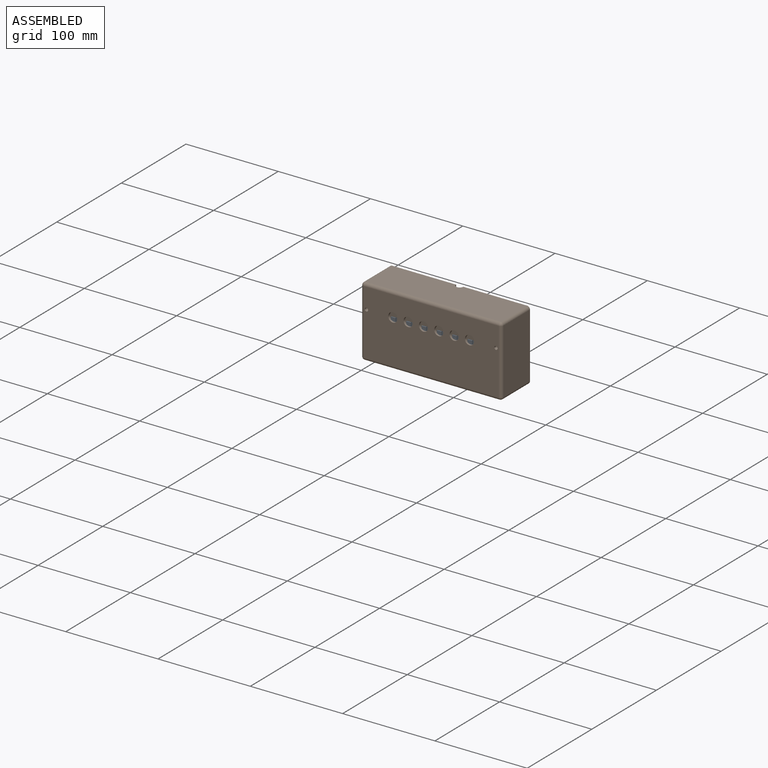
[diagram: assembled view]
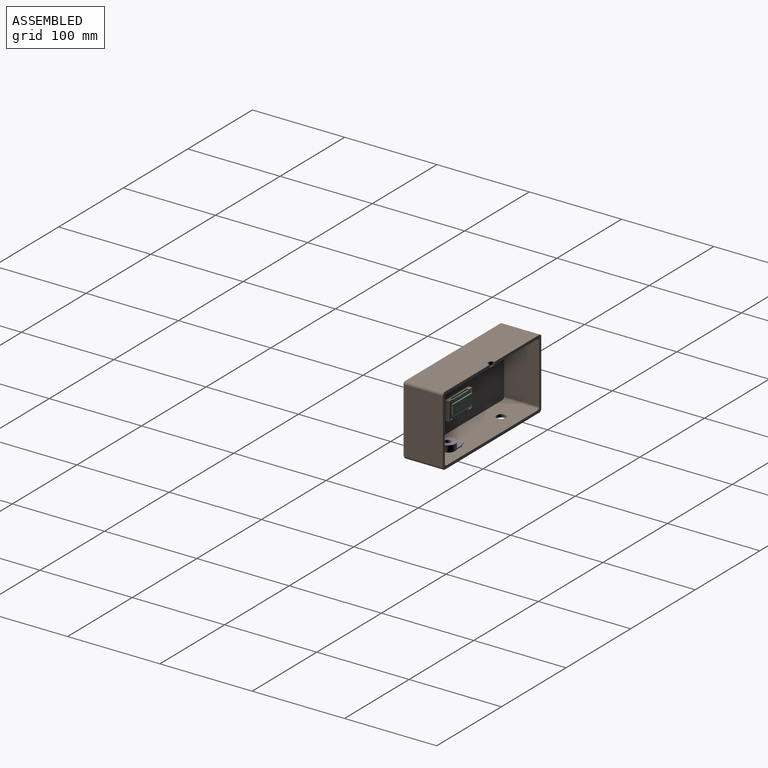
[diagram: assembled view, second angle]
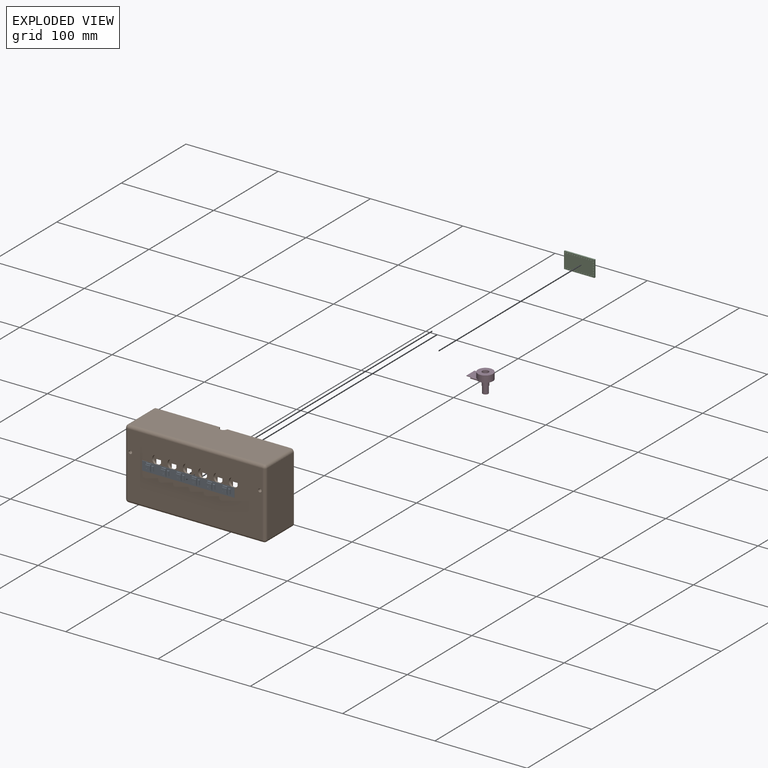
[diagram: exploded view]
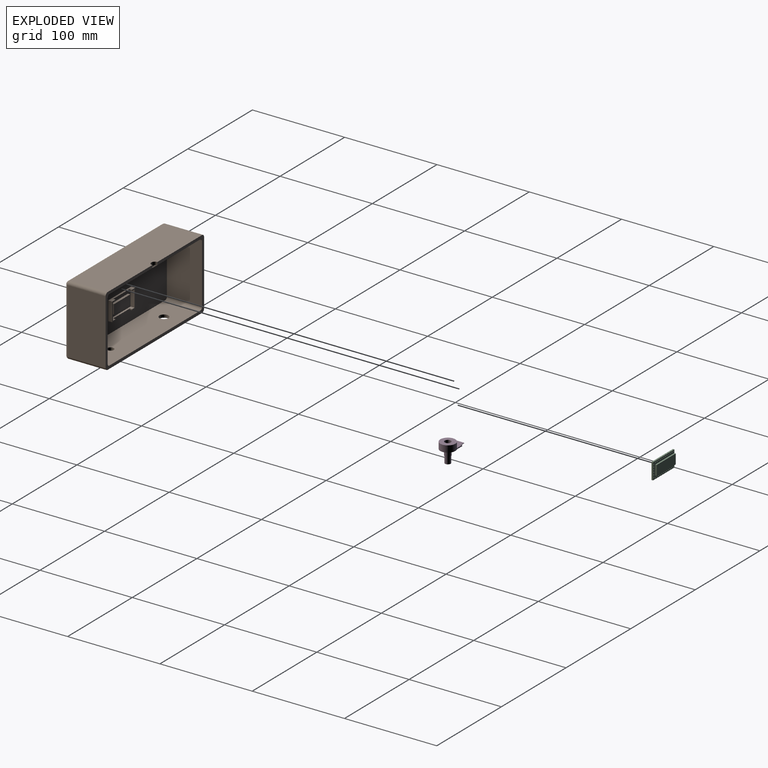
[diagram: exploded view, second angle]
ASSEMBLY  parts=4 mates=4
PART A: 132 faces, bbox 100x1.8x10 mm
  f0: plane 7.91x1.6mm, normal (1,0,0), area 10.9mm2, adj f1,f4,f5,f66,f67,f68,f69,f126
  f1: plane 5x0.6mm, normal (0,0,1), area 3mm2, adj f0,f2,f5,f67
  f2: plane 7.91x1.6mm, normal (-1,0,0), area 10.9mm2, adj f1,f4,f5,f66,f67,f68,f69,f126
  f3: cylinder r=1.88mm len=3.75mm, axis (0,1,0), area 1.2mm2, adj f5,f11
  f4: plane 5x0.6mm, normal (0,0,-1), area 3mm2, adj f0,f2,f5,f66
  f5: plane 5x5mm, normal (0,-1,0), area 14mm2, adj f0,f1,f2,f3,f4
  f6: plane 2.5x0.5mm, normal (0,-1,0), area 1.3mm2, adj f7,f8,f9,f10
  f7: plane 2.5x0.1mm, normal (0,0,-1), area 0.3mm2, adj f6,f8,f10,f11
  f8: plane 0.5x0.1mm, normal (1,0,0), area 0.1mm2, adj f6,f7,f9,f11
  f9: plane 2.5x0.1mm, normal (0,0,1), area 0.3mm2, adj f6,f8,f10,f11
  f10: plane 0.5x0.1mm, normal (-1,0,0), area 0.1mm2, adj f6,f7,f9,f11
  f11: plane 3.75x3.75mm, normal (0,-1,0), area 9.8mm2, adj f3,f7,f8,f9,f10
  f12: plane 7.91x1.6mm, normal (1,0,0), area 10.9mm2, adj f13,f16,f17,f52,f53,f54,f55,f126
  f13: plane 5x0.6mm, normal (0,0,1), area 3mm2, adj f12,f14,f17,f52
  f14: plane 7.91x1.6mm, normal (-1,0,0), area 10.9mm2, adj f13,f16,f17,f52,f53,f54,f55,f126
  f15: cylinder r=1.88mm len=3.75mm, axis (0,1,0), area 1.2mm2, adj f17,f23
  f16: plane 5x0.6mm, normal (0,0,-1), area 3mm2, adj f12,f14,f17,f53
  f17: plane 5x5mm, normal (0,-1,0), area 14mm2, adj f12,f13,f14,f15,f16
  f18: plane 2.5x0.5mm, normal (0,-1,0), area 1.3mm2, adj f19,f20,f21,f22
  f19: plane 0.5x0.1mm, normal (-1,0,0), area 0.1mm2, adj f18,f20,f22,f23
  f20: plane 2.5x0.1mm, normal (0,0,-1), area 0.3mm2, adj f18,f19,f21,f23
  f21: plane 0.5x0.1mm, normal (1,0,0), area 0.1mm2, adj f18,f20,f22,f23
  f22: plane 2.5x0.1mm, normal (0,0,1), area 0.3mm2, adj f18,f19,f21,f23
  f23: plane 3.75x3.75mm, normal (0,-1,0), area 9.8mm2, adj f15,f19,f20,f21,f22
  f24: plane 7.91x1.6mm, normal (1,0,0), area 10.9mm2, adj f25,f28,f29,f70,f71,f72,f73,f126
  f25: plane 5x0.6mm, normal (0,0,1), area 3mm2, adj f24,f26,f29,f71
  f26: plane 7.91x1.6mm, normal (-1,0,0), area 10.9mm2, adj f25,f28,f29,f70,f71,f72,f73,f126
  f27: cylinder r=1.88mm len=3.75mm, axis (0,1,0), area 1.2mm2, adj f29,f35
  f28: plane 5x0.6mm, normal (0,0,-1), area 3mm2, adj f24,f26,f29,f73
  f29: plane 5x5mm, normal (0,-1,0), area 14mm2, adj f24,f25,f26,f27,f28
  f30: plane 2.5x0.5mm, normal (0,-1,0), area 1.2mm2, adj f31,f32,f33,f34
  f31: plane 2.5x0.1mm, normal (0,0,-1), area 0.3mm2, adj f30,f32,f34,f35
  f32: plane 0.5x0.1mm, normal (1,0,0), area 0.1mm2, adj f30,f31,f33,f35
  f33: plane 2.5x0.1mm, normal (0,0,1), area 0.3mm2, adj f30,f32,f34,f35
  f34: plane 0.5x0.1mm, normal (-1,0,0), area 0.1mm2, adj f30,f31,f33,f35
  f35: plane 3.75x3.75mm, normal (0,-1,0), area 9.8mm2, adj f27,f31,f32,f33,f34
  f36: plane 7.91x1.6mm, normal (1,0,0), area 10.9mm2, adj f37,f40,f41,f74,f75,f76,f77,f126
  f37: plane 5x0.6mm, normal (0,0,1), area 3mm2, adj f36,f38,f41,f75
  f38: plane 7.91x1.6mm, normal (-1,0,0), area 10.9mm2, adj f37,f40,f41,f74,f75,f76,f77,f126
  f39: cylinder r=1.88mm len=3.75mm, axis (0,1,0), area 1.2mm2, adj f41,f47
  f40: plane 5x0.6mm, normal (0,0,-1), area 3mm2, adj f36,f38,f41,f77
  f41: plane 5x5mm, normal (0,-1,0), area 14mm2, adj f36,f37,f38,f39,f40
  f42: plane 2.5x0.5mm, normal (0,-1,0), area 1.2mm2, adj f43,f44,f45,f46
  f43: plane 2.5x0.1mm, normal (0,0,-1), area 0.3mm2, adj f42,f44,f46,f47
  f44: plane 0.5x0.1mm, normal (1,0,0), area 0.1mm2, adj f42,f43,f45,f47
  f45: plane 2.5x0.1mm, normal (0,0,1), area 0.3mm2, adj f42,f44,f46,f47
  f46: plane 0.5x0.1mm, normal (-1,0,0), area 0.1mm2, adj f42,f43,f45,f47
  f47: plane 3.75x3.75mm, normal (0,-1,0), area 9.8mm2, adj f39,f43,f44,f45,f46
  f48: plane 10x0.2mm, normal (1,0,0), area 2mm2, adj f49,f51,f125,f126
  f49: plane 100x0.2mm, normal (0,0,1), area 20mm2, adj f48,f50,f125,f126
  f50: plane 10x0.2mm, normal (-1,0,0), area 2mm2, adj f49,f51,f125,f126
  f51: plane 100x0.2mm, normal (0,0,-1), area 20mm2, adj f48,f50,f125,f126
  f52: plane 5x1.46mm, normal (0,-1,0), area 7.3mm2, adj f12,f13,f14,f54
  f53: plane 5x1.46mm, normal (0,-1,0), area 7.3mm2, adj f12,f14,f16,f55
  f54: plane 5x1mm, normal (0,0,1), area 5mm2, adj f12,f14,f52,f126
  f55: plane 5x1mm, normal (0,0,-1), area 5mm2, adj f12,f14,f53,f126
  f56: plane 5x2mm, normal (0,-1,0), area 10mm2, adj f57,f58,f59,f60
  f57: plane 2x1mm, normal (0,0,-1), area 2mm2, adj f56,f58,f60,f126
  f58: plane 5x1mm, normal (-1,0,0), area 5mm2, adj f56,f57,f59,f126
  f59: plane 2x1mm, normal (0,0,1), area 2mm2, adj f56,f58,f60,f126
  f60: plane 5x1mm, normal (1,0,0), area 5mm2, adj f56,f57,f59,f126
  f61: plane 5x2mm, normal (0,-1,0), area 10mm2, adj f62,f63,f64,f65
  f62: plane 2x1mm, normal (0,0,-1), area 2mm2, adj f61,f63,f65,f126
  f63: plane 5x1mm, normal (-1,0,0), area 5mm2, adj f61,f62,f64,f126
  f64: plane 2x1mm, normal (0,0,1), area 2mm2, adj f61,f63,f65,f126
  f65: plane 5x1mm, normal (1,0,0), area 5mm2, adj f61,f62,f64,f126
  f66: plane 5x1.46mm, normal (0,-1,0), area 7.3mm2, adj f0,f2,f4,f68
  f67: plane 5x1.46mm, normal (0,-1,0), area 7.3mm2, adj f0,f1,f2,f69
  f68: plane 5x1mm, normal (0,0,-1), area 5mm2, adj f0,f2,f66,f126
  f69: plane 5x1mm, normal (0,0,1), area 5mm2, adj f0,f2,f67,f126
  f70: plane 5x1mm, normal (0,0,1), area 5mm2, adj f24,f26,f71,f126
  f71: plane 5x1.46mm, normal (0,-1,0), area 7.3mm2, adj f24,f25,f26,f70
  f72: plane 5x1mm, normal (0,0,-1), area 5mm2, adj f24,f26,f73,f126
  f73: plane 5x1.46mm, normal (0,-1,0), area 7.3mm2, adj f24,f26,f28,f72
  f74: plane 5x1mm, normal (0,0,1), area 5mm2, adj f36,f38,f75,f126
  f75: plane 5x1.46mm, normal (0,-1,0), area 7.3mm2, adj f36,f37,f38,f74
  f76: plane 5x1mm, normal (0,0,-1), area 5mm2, adj f36,f38,f77,f126
  f77: plane 5x1.46mm, normal (0,-1,0), area 7.3mm2, adj f36,f38,f40,f76
  f78: plane 5x1mm, normal (1,0,0), area 5mm2, adj f79,f81,f82,f126
  f79: plane 2x1mm, normal (0,0,1), area 2mm2, adj f78,f80,f82,f126
  f80: plane 5x1mm, normal (-1,0,0), area 5mm2, adj f79,f81,f82,f126
  f81: plane 2x1mm, normal (0,0,-1), area 2mm2, adj f78,f80,f82,f126
  f82: plane 5x2mm, normal (0,-1,0), area 10mm2, adj f78,f79,f80,f81
  f83: plane 5x1mm, normal (1,0,0), area 5mm2, adj f84,f86,f87,f126
  f84: plane 2x1mm, normal (0,0,1), area 2mm2, adj f83,f85,f87,f126
  f85: plane 5x1mm, normal (-1,0,0), area 5mm2, adj f84,f86,f87,f126
  f86: plane 2x1mm, normal (0,0,-1), area 2mm2, adj f83,f85,f87,f126
  f87: plane 5x2mm, normal (0,-1,0), area 10mm2, adj f83,f84,f85,f86
  f88: plane 5x1mm, normal (1,0,0), area 5mm2, adj f89,f91,f92,f126
  f89: plane 2x1mm, normal (0,0,1), area 2mm2, adj f88,f90,f92,f126
  f90: plane 5x1mm, normal (-1,0,0), area 5mm2, adj f89,f91,f92,f126
  f91: plane 2x1mm, normal (0,0,-1), area 2mm2, adj f88,f90,f92,f126
  f92: plane 5x2mm, normal (0,-1,0), area 10mm2, adj f88,f89,f90,f91
  f93: plane 2.5x0.1mm, normal (0,0,1), area 0.3mm2, adj f94,f96,f97,f98
  f94: plane 0.5x0.1mm, normal (-1,0,0), area 0.1mm2, adj f93,f95,f97,f98
  f95: plane 2.5x0.1mm, normal (0,0,-1), area 0.3mm2, adj f94,f96,f97,f98
  f96: plane 0.5x0.1mm, normal (1,0,0), area 0.1mm2, adj f93,f95,f97,f98
  f97: plane 2.5x0.5mm, normal (0,-1,0), area 1.3mm2, adj f93,f94,f95,f96
  f98: plane 3.75x3.75mm, normal (0,-1,0), area 9.8mm2, adj f93,f94,f95,f96,f105
  f99: plane 5x1.46mm, normal (0,-1,0), area 7.3mm2, adj f100,f104,f106,f108
  f100: plane 5x1mm, normal (0,0,-1), area 5mm2, adj f99,f106,f108,f126
  f101: plane 5x1.46mm, normal (0,-1,0), area 7.3mm2, adj f102,f106,f107,f108
  f102: plane 5x1mm, normal (0,0,1), area 5mm2, adj f101,f106,f108,f126
  f103: plane 5x5mm, normal (0,-1,0), area 14mm2, adj f104,f105,f106,f107,f108
  f104: plane 5x0.6mm, normal (0,0,-1), area 3mm2, adj f99,f103,f106,f108
  f105: cylinder r=1.88mm len=3.75mm, axis (0,1,0), area 1.2mm2, adj f98,f103
  f106: plane 7.91x1.6mm, normal (-1,0,0), area 10.9mm2, adj f99,f100,f101,f102,f103,f104,f107,f126
  f107: plane 5x0.6mm, normal (0,0,1), area 3mm2, adj f101,f103,f106,f108
  f108: plane 7.91x1.6mm, normal (1,0,0), area 10.9mm2, adj f99,f100,f101,f102,f103,f104,f107,f126
  f109: plane 5x1.46mm, normal (0,-1,0), area 7.3mm2, adj f110,f120,f122,f124
  f110: plane 5x1mm, normal (0,0,-1), area 5mm2, adj f109,f122,f124,f126
  f111: plane 5x1.46mm, normal (0,-1,0), area 7.3mm2, adj f112,f122,f123,f124
  f112: plane 5x1mm, normal (0,0,1), area 5mm2, adj f111,f122,f124,f126
  f113: plane 2.5x0.1mm, normal (0,0,1), area 0.2mm2, adj f114,f116,f117,f118
  f114: plane 0.5x0.1mm, normal (-1,0,0), area 0.1mm2, adj f113,f115,f117,f118
  f115: plane 2.5x0.1mm, normal (0,0,-1), area 0.2mm2, adj f114,f116,f117,f118
  f116: plane 0.5x0.1mm, normal (1,0,0), area 0.1mm2, adj f113,f115,f117,f118
  f117: plane 2.5x0.5mm, normal (0,-1,0), area 1.2mm2, adj f113,f114,f115,f116
  f118: plane 3.75x3.75mm, normal (0,-1,0), area 9.8mm2, adj f113,f114,f115,f116,f121
  f119: plane 5x5mm, normal (0,-1,0), area 14mm2, adj f120,f121,f122,f123,f124
  f120: plane 5x0.6mm, normal (0,0,-1), area 3mm2, adj f109,f119,f122,f124
  f121: cylinder r=1.88mm len=3.75mm, axis (0,1,0), area 1.2mm2, adj f118,f119
  f122: plane 7.91x1.6mm, normal (-1,0,0), area 10.9mm2, adj f109,f110,f111,f112,f119,f120,f123,f126
  f123: plane 5x0.6mm, normal (0,0,1), area 3mm2, adj f111,f119,f122,f124
  f124: plane 7.91x1.6mm, normal (1,0,0), area 10.9mm2, adj f109,f110,f111,f112,f119,f120,f123,f126
  f125: plane 100x10mm, normal (0,1,0), area 1000mm2, adj f48,f49,f50,f51
  f126: plane 100x10mm, normal (0,-1,0), area 702.7mm2, adj f0,f2,f12,f14,f24,f26,f36,f38
  f127: plane 5x1mm, normal (1,0,0), area 5mm2, adj f126,f128,f130,f131
  f128: plane 2x1mm, normal (0,0,1), area 2mm2, adj f126,f127,f129,f131
  f129: plane 5x1mm, normal (-1,0,0), area 5mm2, adj f126,f128,f130,f131
  f130: plane 2x1mm, normal (0,0,-1), area 2mm2, adj f126,f127,f129,f131
  f131: plane 5x2mm, normal (0,-1,0), area 10mm2, adj f127,f128,f129,f130
PART B: 161 faces, bbox 152.4x44.1x76.2 mm
  f0: plane 152.4x76.2mm, normal (0,1,0), area 1383.4mm2, adj f1,f2,f16,f17,f18,f19,f20,f21
  f1: plane 146.05x40.93mm, normal (0,0,1), area 5953.2mm2, adj f0,f17,f18,f137,f160
  f2: plane 140.97x38.1mm, normal (0,0,-1), area 5347.1mm2, adj f0,f7,f128,f129,f160
  f3: plane 20.32x5.03mm, normal (0,1,0), area 32.1mm2, adj f5,f6,f138,f139,f140,f142,f151,f153
  f4: plane 20.32x5.1mm, normal (0,1,0), area 32.3mm2, adj f5,f6,f138,f141,f142,f143,f150,f154
  f5: plane 35.56x4.45mm, normal (0,0,-1), area 93.5mm2, adj f3,f4,f7,f139,f143,f150,f151,f152
  f6: plane 33.27x4.45mm, normal (0,0,-1), area 83.3mm2, adj f3,f4,f140,f141,f149,f153,f154,f155
  f7: plane 146.05x69.85mm, normal (0,1,0), area 8156.5mm2, adj f2,f5,f14,f24,f25,f26,f123,f124
  f8: plane 5.8x0.1mm, normal (0,0,-1), area 0.6mm2, adj f27,f28,f62,f121
  f9: plane 5.8x0.1mm, normal (0,0,-1), area 0.6mm2, adj f31,f32,f47,f119
  f10: plane 5.8x0.1mm, normal (0,0,-1), area 0.6mm2, adj f35,f36,f66,f117
  f11: plane 5.8x0.1mm, normal (0,0,-1), area 0.6mm2, adj f39,f40,f70,f115
  f12: plane 5.8x0.1mm, normal (0,0,-1), area 0.6mm2, adj f91,f94,f95,f114
  f13: plane 5.8x0.1mm, normal (0,0,-1), area 0.6mm2, adj f98,f102,f103,f112
  f14: plane 120x2mm, normal (0,0,1), area 179.5mm2, adj f7,f15,f24,f26,f43,f45,f104
  f15: plane 120x10.8mm, normal (0,1,0), area 227.5mm2, adj f14,f24,f25,f26,f43,f44,f45
  f16: plane 69.85x40.93mm, normal (1,0,0), area 2858.6mm2, adj f0,f17,f22,f133
  f17: cylinder r=3.17mm len=40.93mm, axis (0,1,0), area 204.1mm2, adj f0,f1,f16,f135
  f18: cylinder r=3.17mm len=40.93mm, axis (0,1,0), area 204.1mm2, adj f0,f1,f19,f136
  f19: plane 69.85x40.93mm, normal (-1,0,0), area 2858.6mm2, adj f0,f18,f20,f134
  f20: cylinder r=3.17mm len=40.93mm, axis (0,1,0), area 204.1mm2, adj f0,f19,f21,f132
  f21: plane 146.05x40.93mm, normal (0,0,-1), area 5863.7mm2, adj f0,f20,f22,f130,f156,f157
  f22: cylinder r=3.17mm len=40.93mm, axis (0,1,0), area 204.1mm2, adj f0,f16,f21,f131
  f23: plane 146.05x69.85mm, normal (0,-1,0), area 9709.3mm2, adj f111,f113,f116,f118,f120,f122,f130,f133
  f24: plane 10.8x2mm, normal (1,0,0), area 21.6mm2, adj f7,f14,f15,f25
  f25: plane 120x2mm, normal (0,0,-1), area 240mm2, adj f7,f15,f24,f26
  f26: plane 10.8x2mm, normal (-1,0,0), area 21.6mm2, adj f7,f14,f15,f25
  f27: plane 8.71x1.6mm, normal (-1,0,0), area 10.4mm2, adj f8,f29,f30,f61,f62,f63,f64,f105
  f28: plane 8.71x1.6mm, normal (1,0,0), area 10.4mm2, adj f8,f29,f30,f61,f62,f63,f64,f105
  f29: plane 5.8x0.6mm, normal (0,0,1), area 3.5mm2, adj f27,f28,f30,f61
  f30: plane 5.8x2.23mm, normal (0,1,0), area 9.3mm2, adj f27,f28,f29,f122
  f31: plane 8.71x1.6mm, normal (-1,0,0), area 10.4mm2, adj f9,f33,f34,f47,f48,f49,f50,f105
  f32: plane 8.71x1.6mm, normal (1,0,0), area 10.4mm2, adj f9,f33,f34,f47,f48,f49,f50,f105
  f33: plane 5.8x0.6mm, normal (0,0,1), area 3.5mm2, adj f31,f32,f34,f48
  f34: plane 5.8x2.23mm, normal (0,1,0), area 9.3mm2, adj f31,f32,f33,f120
  f35: plane 8.71x1.6mm, normal (-1,0,0), area 10.4mm2, adj f10,f37,f38,f65,f66,f67,f68,f105
  f36: plane 8.71x1.6mm, normal (1,0,0), area 10.4mm2, adj f10,f37,f38,f65,f66,f67,f68,f105
  f37: plane 5.8x0.6mm, normal (0,0,1), area 3.5mm2, adj f35,f36,f38,f68
  f38: plane 5.8x2.23mm, normal (0,1,0), area 9.3mm2, adj f35,f36,f37,f118
  f39: plane 8.71x1.6mm, normal (-1,0,0), area 10.4mm2, adj f11,f41,f42,f69,f70,f71,f72,f105
  f40: plane 8.71x1.6mm, normal (1,0,0), area 10.4mm2, adj f11,f41,f42,f69,f70,f71,f72,f105
  f41: plane 5.8x0.6mm, normal (0,0,1), area 3.5mm2, adj f39,f40,f42,f72
  f42: plane 5.8x2.23mm, normal (0,1,0), area 9.3mm2, adj f39,f40,f41,f116
  f43: plane 10.8x1mm, normal (-1,0,0), area 4.4mm2, adj f14,f15,f44,f46,f104,f105
  f44: plane 100.8x0.4mm, normal (0,0,-1), area 40.3mm2, adj f15,f43,f45,f105
  f45: plane 10.8x1mm, normal (1,0,0), area 4.4mm2, adj f14,f15,f44,f46,f104,f105
  f46: plane 100.8x1mm, normal (0,0,1), area 100.8mm2, adj f43,f45,f104,f105
  f47: plane 5.8x1.46mm, normal (0,1,0), area 8.4mm2, adj f9,f31,f32,f49
  f48: plane 5.8x1.46mm, normal (0,1,0), area 8.4mm2, adj f31,f32,f33,f50
  f49: plane 5.8x1mm, normal (0,0,-1), area 5.8mm2, adj f31,f32,f47,f105
  f50: plane 5.8x1mm, normal (0,0,1), area 5.8mm2, adj f31,f32,f48,f105
  f51: plane 5.8x2.8mm, normal (0,1,0), area 16.2mm2, adj f52,f53,f54,f55
  f52: plane 2.8x1mm, normal (0,0,1), area 2.8mm2, adj f51,f53,f55,f105
  f53: plane 5.8x1mm, normal (1,0,0), area 5.8mm2, adj f51,f52,f54,f105
  f54: plane 2.8x1mm, normal (0,0,-1), area 2.8mm2, adj f51,f53,f55,f105
  f55: plane 5.8x1mm, normal (-1,0,0), area 5.8mm2, adj f51,f52,f54,f105
  f56: plane 5.8x2.8mm, normal (0,1,0), area 16.2mm2, adj f57,f58,f59,f60
  f57: plane 2.8x1mm, normal (0,0,1), area 2.8mm2, adj f56,f58,f60,f105
  f58: plane 5.8x1mm, normal (1,0,0), area 5.8mm2, adj f56,f57,f59,f105
  f59: plane 2.8x1mm, normal (0,0,-1), area 2.8mm2, adj f56,f58,f60,f105
  f60: plane 5.8x1mm, normal (-1,0,0), area 5.8mm2, adj f56,f57,f59,f105
  f61: plane 5.8x1.46mm, normal (0,1,0), area 8.4mm2, adj f27,f28,f29,f63
  f62: plane 5.8x1.46mm, normal (0,1,0), area 8.4mm2, adj f8,f27,f28,f64
  f63: plane 5.8x1mm, normal (0,0,1), area 5.8mm2, adj f27,f28,f61,f105
  f64: plane 5.8x1mm, normal (0,0,-1), area 5.8mm2, adj f27,f28,f62,f105
  f65: plane 5.8x1mm, normal (0,0,-1), area 5.8mm2, adj f35,f36,f66,f105
  f66: plane 5.8x1.46mm, normal (0,1,0), area 8.4mm2, adj f10,f35,f36,f65
  f67: plane 5.8x1mm, normal (0,0,1), area 5.8mm2, adj f35,f36,f68,f105
  f68: plane 5.8x1.46mm, normal (0,1,0), area 8.4mm2, adj f35,f36,f37,f67
  f69: plane 5.8x1mm, normal (0,0,-1), area 5.8mm2, adj f39,f40,f70,f105
  f70: plane 5.8x1.46mm, normal (0,1,0), area 8.4mm2, adj f11,f39,f40,f69
  f71: plane 5.8x1mm, normal (0,0,1), area 5.8mm2, adj f39,f40,f72,f105
  f72: plane 5.8x1.46mm, normal (0,1,0), area 8.4mm2, adj f39,f40,f41,f71
  f73: plane 5.8x1mm, normal (-1,0,0), area 5.8mm2, adj f74,f76,f77,f105
  f74: plane 2.8x1mm, normal (0,0,-1), area 2.8mm2, adj f73,f75,f77,f105
  f75: plane 5.8x1mm, normal (1,0,0), area 5.8mm2, adj f74,f76,f77,f105
  f76: plane 2.8x1mm, normal (0,0,1), area 2.8mm2, adj f73,f75,f77,f105
  f77: plane 5.8x2.8mm, normal (0,1,0), area 16.2mm2, adj f73,f74,f75,f76
  f78: plane 5.8x1mm, normal (-1,0,0), area 5.8mm2, adj f79,f81,f82,f105
  f79: plane 2.8x1mm, normal (0,0,-1), area 2.8mm2, adj f78,f80,f82,f105
  f80: plane 5.8x1mm, normal (1,0,0), area 5.8mm2, adj f79,f81,f82,f105
  f81: plane 2.8x1mm, normal (0,0,1), area 2.8mm2, adj f78,f80,f82,f105
  f82: plane 5.8x2.8mm, normal (0,1,0), area 16.2mm2, adj f78,f79,f80,f81
  f83: plane 5.8x1mm, normal (-1,0,0), area 5.8mm2, adj f84,f86,f87,f105
  f84: plane 2.8x1mm, normal (0,0,-1), area 2.8mm2, adj f83,f85,f87,f105
  f85: plane 5.8x1mm, normal (1,0,0), area 5.8mm2, adj f84,f86,f87,f105
  f86: plane 2.8x1mm, normal (0,0,1), area 2.8mm2, adj f83,f85,f87,f105
  f87: plane 5.8x2.8mm, normal (0,1,0), area 16.2mm2, adj f83,f84,f85,f86
  f88: plane 5.8x2.23mm, normal (0,1,0), area 9.3mm2, adj f93,f94,f95,f113
  f89: plane 5.8x1.46mm, normal (0,1,0), area 8.4mm2, adj f90,f93,f94,f95
  f90: plane 5.8x1mm, normal (0,0,1), area 5.8mm2, adj f89,f94,f95,f105
  f91: plane 5.8x1.46mm, normal (0,1,0), area 8.4mm2, adj f12,f92,f94,f95
  f92: plane 5.8x1mm, normal (0,0,-1), area 5.8mm2, adj f91,f94,f95,f105
  f93: plane 5.8x0.6mm, normal (0,0,1), area 3.5mm2, adj f88,f89,f94,f95
  f94: plane 8.71x1.6mm, normal (1,0,0), area 10.4mm2, adj f12,f88,f89,f90,f91,f92,f93,f105
  f95: plane 8.71x1.6mm, normal (-1,0,0), area 10.4mm2, adj f12,f88,f89,f90,f91,f92,f93,f105
  f96: plane 5.8x1.46mm, normal (0,1,0), area 8.4mm2, adj f97,f101,f102,f103
  f97: plane 5.8x1mm, normal (0,0,1), area 5.8mm2, adj f96,f102,f103,f105
  f98: plane 5.8x1.46mm, normal (0,1,0), area 8.4mm2, adj f13,f99,f102,f103
  f99: plane 5.8x1mm, normal (0,0,-1), area 5.8mm2, adj f98,f102,f103,f105
  f100: plane 5.8x2.23mm, normal (0,1,0), area 9.3mm2, adj f101,f102,f103,f111
  f101: plane 5.8x0.6mm, normal (0,0,1), area 3.5mm2, adj f96,f100,f102,f103
  f102: plane 8.71x1.6mm, normal (1,0,0), area 10.4mm2, adj f13,f96,f97,f98,f99,f100,f101,f105
  f103: plane 8.71x1.6mm, normal (-1,0,0), area 10.4mm2, adj f13,f96,f97,f98,f99,f100,f101,f105
  f104: plane 100.8x0.2mm, normal (0,-1,0), area 20.2mm2, adj f14,f43,f45,f46
  f105: plane 100.8x10.8mm, normal (0,1,0), area 688mm2, adj f27,f28,f31,f32,f35,f36,f39,f40
  f106: plane 5.8x1mm, normal (-1,0,0), area 5.8mm2, adj f105,f107,f109,f110
  f107: plane 2.8x1mm, normal (0,0,-1), area 2.8mm2, adj f105,f106,f108,f110
  f108: plane 5.8x1mm, normal (1,0,0), area 5.8mm2, adj f105,f107,f109,f110
  f109: plane 2.8x1mm, normal (0,0,1), area 2.8mm2, adj f105,f106,f108,f110
  f110: plane 5.8x2.8mm, normal (0,1,0), area 16.2mm2, adj f106,f107,f108,f109
  f111: cylinder r=5mm len=10mm, axis (0,-1,0), area 75.4mm2, adj f23,f100,f102,f103,f112
  f112: plane 10x9.07mm, normal (0,-1,0), area 54.2mm2, adj f13,f102,f103,f111
  f113: cylinder r=5mm len=10mm, axis (0,-1,0), area 75.4mm2, adj f23,f88,f94,f95,f114
  f114: plane 10x9.07mm, normal (0,-1,0), area 54.2mm2, adj f12,f94,f95,f113
  f115: plane 10x9.07mm, normal (0,-1,0), area 54.2mm2, adj f11,f39,f40,f116
  f116: cylinder r=5mm len=10mm, axis (0,-1,0), area 75.4mm2, adj f23,f39,f40,f42,f115
  f117: plane 10x9.07mm, normal (0,-1,0), area 54.2mm2, adj f10,f35,f36,f118
  f118: cylinder r=5mm len=10mm, axis (0,-1,0), area 75.4mm2, adj f23,f35,f36,f38,f117
  f119: plane 10x9.07mm, normal (0,-1,0), area 54.2mm2, adj f9,f31,f32,f120
  f120: cylinder r=5mm len=10mm, axis (0,-1,0), area 75.4mm2, adj f23,f31,f32,f34,f119
  f121: plane 10x9.07mm, normal (0,-1,0), area 54.2mm2, adj f8,f27,f28,f122
  f122: cylinder r=5mm len=10mm, axis (0,-1,0), area 75.4mm2, adj f23,f27,f28,f30,f121
  f123: plane 64.77x38.1mm, normal (-1,0,0), area 2467.7mm2, adj f0,f7,f126,f129
  f124: plane 140.97x38.1mm, normal (0,0,1), area 5257.5mm2, adj f0,f7,f126,f127,f156,f157
  f125: plane 64.77x38.1mm, normal (1,0,0), area 2467.7mm2, adj f0,f7,f127,f128
  f126: cylinder r=2.54mm len=38.1mm, axis (0,1,0), area 152mm2, adj f0,f7,f123,f124
  f127: cylinder r=2.54mm len=38.1mm, axis (0,-1,0), area 152mm2, adj f0,f7,f124,f125
  f128: cylinder r=2.54mm len=38.1mm, axis (0,1,0), area 152mm2, adj f0,f2,f7,f125
  f129: cylinder r=2.54mm len=38.1mm, axis (0,-1,0), area 152mm2, adj f0,f2,f7,f123
  f130: cylinder r=3.17mm len=146.05mm, axis (-1,0,0), area 728.4mm2, adj f21,f23,f131,f132
  f131: sphere r=3.17mm, area 15.8mm2, adj f22,f130,f133
  f132: sphere r=3.17mm, area 15.8mm2, adj f20,f130,f134
  f133: cylinder r=3.17mm len=69.85mm, axis (0,0,-1), area 348.4mm2, adj f16,f23,f131,f135
  f134: cylinder r=3.17mm len=69.85mm, axis (0,0,1), area 348.4mm2, adj f19,f23,f132,f136
  f135: sphere r=3.17mm, area 15.8mm2, adj f17,f133,f137
  f136: sphere r=3.17mm, area 15.8mm2, adj f18,f134,f137
  f137: cylinder r=3.17mm len=146.05mm, axis (1,0,0), area 728.4mm2, adj f1,f23,f135,f136
  f138: plane 35.56x4.45mm, normal (0,0,1), area 93.5mm2, adj f3,f4,f7,f139,f143,f153,f154,f155
  f139: plane 20.32x4.45mm, normal (-1,0,0), area 90.3mm2, adj f3,f5,f7,f138
  f140: plane 18.03x4.45mm, normal (1,0,0), area 80.2mm2, adj f3,f6,f142,f149
  f141: plane 18.03x4.45mm, normal (-1,0,0), area 80.2mm2, adj f4,f6,f142,f149
  f142: plane 33.27x4.45mm, normal (0,0,1), area 83.3mm2, adj f3,f4,f140,f141,f149,f150,f151,f152
  f143: plane 20.32x4.45mm, normal (1,0,0), area 90.3mm2, adj f4,f5,f7,f138
  f144: plane 25.4x10.16mm, normal (0,1,0), area 258.1mm2, adj f145,f146,f147,f148
  f145: plane 10.16x2.54mm, normal (1,0,0), area 25.8mm2, adj f144,f146,f148,f149
  f146: plane 25.4x2.54mm, normal (0,0,-1), area 64.5mm2, adj f144,f145,f147,f149
  f147: plane 10.16x2.54mm, normal (-1,0,0), area 25.8mm2, adj f144,f146,f148,f149
  f148: plane 25.4x2.54mm, normal (0,0,1), area 64.5mm2, adj f144,f145,f147,f149
  f149: plane 33.27x18.03mm, normal (0,1,0), area 342mm2, adj f6,f140,f141,f142,f145,f146,f147,f148
  f150: plane 2.54x1.14mm, normal (-1,0,0), area 2.9mm2, adj f4,f5,f142,f152
  f151: plane 2.54x1.14mm, normal (1,0,0), area 2.9mm2, adj f3,f5,f142,f152
  f152: plane 25.43x1.14mm, normal (0,1,0), area 29.1mm2, adj f5,f142,f150,f151
  f153: plane 2.54x1.14mm, normal (1,0,0), area 2.9mm2, adj f3,f6,f138,f155
  f154: plane 2.54x1.14mm, normal (-1,0,0), area 2.9mm2, adj f4,f6,f138,f155
  f155: plane 25.43x1.14mm, normal (0,1,0), area 29.1mm2, adj f6,f138,f153,f154
  f156: cylinder r=3.49mm len=6.99mm, axis (0,0,-1), area 69.7mm2, adj f21,f124
  f157: cylinder r=4.89mm len=9.78mm, axis (0,0,-1), area 97.5mm2, adj f21,f124
  f158: cylinder r=1.83mm len=6mm, axis (0,-1,0), area 68.9mm2, adj f7,f23
  f159: cylinder r=1.83mm len=6mm, axis (0,-1,0), area 68.9mm2, adj f7,f23
  f160: cylinder r=3.9mm len=7.8mm, axis (0,0,1), area 38.9mm2, adj f0,f1,f2
PART C: 40 faces, bbox 33x3.1x17.8 mm
  f0: plane 33.02x17.78mm, normal (0,-1,0), area 252.6mm2, adj f1,f2,f3,f4,f6,f7,f8,f10
  f1: plane 17.78x1.57mm, normal (1,0,0), area 28mm2, adj f0,f2,f4,f5
  f2: plane 33.02x1.57mm, normal (0,0,1), area 52mm2, adj f0,f1,f3,f5
  f3: plane 17.78x3.15mm, normal (-1,0,0), area 44.8mm2, adj f0,f2,f4,f5,f6,f7,f9
  f4: plane 33.02x1.57mm, normal (0,0,-1), area 52mm2, adj f0,f1,f3,f5
  f5: plane 33.02x17.78mm, normal (0,1,0), area 566.9mm2, adj f1,f2,f3,f4,f10,f11,f12,f13
  f6: plane 29.46x1.57mm, normal (0,0,1), area 46.4mm2, adj f0,f3,f8,f9
  f7: plane 29.46x1.57mm, normal (0,0,-1), area 46.4mm2, adj f0,f3,f8,f9
  f8: plane 10.67x1.57mm, normal (1,0,0), area 16.8mm2, adj f0,f6,f7,f9
  f9: plane 29.46x10.67mm, normal (0,-1,0), area 314.3mm2, adj f3,f6,f7,f8
  f10: cylinder r=0.46mm len=1.58mm, axis (0,-1,0), area 4.6mm2, adj f0,f5
  f11: cylinder r=0.46mm len=1.58mm, axis (0,-1,0), area 4.6mm2, adj f0,f5
  f12: cylinder r=0.46mm len=1.58mm, axis (0,-1,0), area 4.6mm2, adj f0,f5
  f13: cylinder r=0.46mm len=1.58mm, axis (0,-1,0), area 4.6mm2, adj f0,f5
  f14: cylinder r=0.46mm len=1.58mm, axis (0,-1,0), area 4.6mm2, adj f0,f5
  f15: cylinder r=0.46mm len=1.58mm, axis (0,-1,0), area 4.6mm2, adj f0,f5
  f16: cylinder r=0.46mm len=1.58mm, axis (0,-1,0), area 4.6mm2, adj f0,f5
  f17: cylinder r=0.46mm len=1.58mm, axis (0,-1,0), area 4.6mm2, adj f0,f5
  f18: cylinder r=0.46mm len=1.58mm, axis (0,-1,0), area 4.6mm2, adj f0,f5
  f19: cylinder r=0.46mm len=1.58mm, axis (0,-1,0), area 4.6mm2, adj f0,f5
  f20: cylinder r=0.46mm len=1.58mm, axis (0,-1,0), area 4.6mm2, adj f0,f5
  f21: cylinder r=0.46mm len=1.58mm, axis (0,-1,0), area 4.6mm2, adj f0,f5
  f22: cylinder r=0.46mm len=1.58mm, axis (0,-1,0), area 4.6mm2, adj f0,f5
  f23: cylinder r=0.46mm len=1.58mm, axis (0,-1,0), area 4.6mm2, adj f0,f5
  f24: cylinder r=0.46mm len=1.58mm, axis (0,-1,0), area 4.6mm2, adj f0,f5
  f25: cylinder r=0.46mm len=1.58mm, axis (0,-1,0), area 4.6mm2, adj f0,f5
  f26: cylinder r=0.46mm len=1.58mm, axis (0,-1,0), area 4.6mm2, adj f0,f5
  f27: cylinder r=0.46mm len=1.58mm, axis (0,-1,0), area 4.6mm2, adj f0,f5
  f28: cylinder r=0.46mm len=1.58mm, axis (0,-1,0), area 4.6mm2, adj f0,f5
  f29: cylinder r=0.46mm len=1.58mm, axis (0,-1,0), area 4.6mm2, adj f0,f5
  f30: cylinder r=0.46mm len=1.58mm, axis (0,-1,0), area 4.6mm2, adj f0,f5
  f31: cylinder r=0.46mm len=1.58mm, axis (0,-1,0), area 4.6mm2, adj f0,f5
  f32: cylinder r=0.46mm len=1.58mm, axis (0,-1,0), area 4.6mm2, adj f0,f5
  f33: cylinder r=0.46mm len=1.58mm, axis (0,-1,0), area 4.6mm2, adj f0,f5
  f34: cylinder r=0.46mm len=1.58mm, axis (0,-1,0), area 4.6mm2, adj f0,f5
  f35: cylinder r=0.46mm len=1.58mm, axis (0,-1,0), area 4.6mm2, adj f0,f5
  f36: cylinder r=0.46mm len=1.58mm, axis (0,-1,0), area 4.6mm2, adj f0,f5
  f37: cylinder r=0.46mm len=1.58mm, axis (0,-1,0), area 4.6mm2, adj f0,f5
  f38: cylinder r=0.46mm len=1.58mm, axis (0,-1,0), area 4.6mm2, adj f0,f5
  f39: cylinder r=0.46mm len=1.58mm, axis (0,-1,0), area 4.6mm2, adj f0,f5
PART D: 18 faces, bbox 16.4x21x24.4 mm
  f0: cylinder r=3.05mm len=7.62mm, axis (0,1,0), area 146mm2, adj f1,f12
  f1: plane 6.1x6.1mm, normal (0,-1,0), area 29.2mm2, adj f0
  f2: plane 15.23x1.17mm, normal (0,0,1), area 11.3mm2, adj f3,f4,f5,f6,f7,f9,f10
  f3: plane 8.17x1.17mm, normal (-1,0,0), area 9.5mm2, adj f2,f5,f6,f14
  f4: plane 8.17x1.17mm, normal (1,0,0), area 9.5mm2, adj f2,f5,f6,f14
  f5: plane 15.23x8.17mm, normal (0,-1,0), area 67.3mm2, adj f2,f3,f4,f14
  f6: plane 15.23x13.25mm, normal (0,1,0), area 131.7mm2, adj f2,f3,f4,f7,f8,f9,f14
  f7: plane 5.08x0.51mm, normal (1,0,0), area 2.6mm2, adj f2,f6,f8,f10
  f8: plane 12.69x0.51mm, normal (0,0,1), area 6.4mm2, adj f6,f7,f9,f10
  f9: plane 5.08x0.51mm, normal (-1,0,0), area 2.6mm2, adj f2,f6,f8,f10
  f10: plane 12.69x5.08mm, normal (0,-1,0), area 64.5mm2, adj f2,f7,f8,f9
  f11: cylinder r=3.43mm len=6.85mm, axis (0,1,0), area 134mm2, adj f12,f15
  f12: plane 6.85x6.85mm, normal (0,-1,0), area 7.7mm2, adj f0,f11
  f13: cylinder r=3.43mm len=6.85mm, axis (0,1,0), area 123mm2, adj f16,f17
  f14: cylinder r=8.19mm len=16.37mm, axis (0,1,0), area 343mm2, adj f3,f4,f5,f6,f15,f16
  f15: plane 16.37x16.37mm, normal (0,-1,0), area 173.7mm2, adj f11,f14
  f16: plane 16.37x16.37mm, normal (0,1,0), area 173.7mm2, adj f13,f14
  f17: plane 6.85x6.85mm, normal (0,1,0), area 36.9mm2, adj f13
PLACE A t=(0.04,69.28,-2.41)mm
PLACE B t=(-0.12,71.68,0.98)mm
PLACE C rot(axis=(1,0,0),180deg) t=(0.17,73.62,-23.24)mm
PLACE D rot(axis=(0.58,-0.58,-0.58),120deg) t=(41.15,90.73,-45.25)mm
MATE parallel C.f5 <-> B.f144  axis (0,-1,0) through (0.09,73.62,-23.24)mm
MATE planar B.f105 <-> A.f126  axis (0,1,0) through (1.27,69.28,-2.42)mm
MATE cylindrical D.f14 <-> B.f156  axis (0,0,-1) through (41.15,90.73,-46.65)mm
MATE planar D.f14 <-> B.f124  axis (0,0,-1) through (41.15,90.73,-46.65)mm
